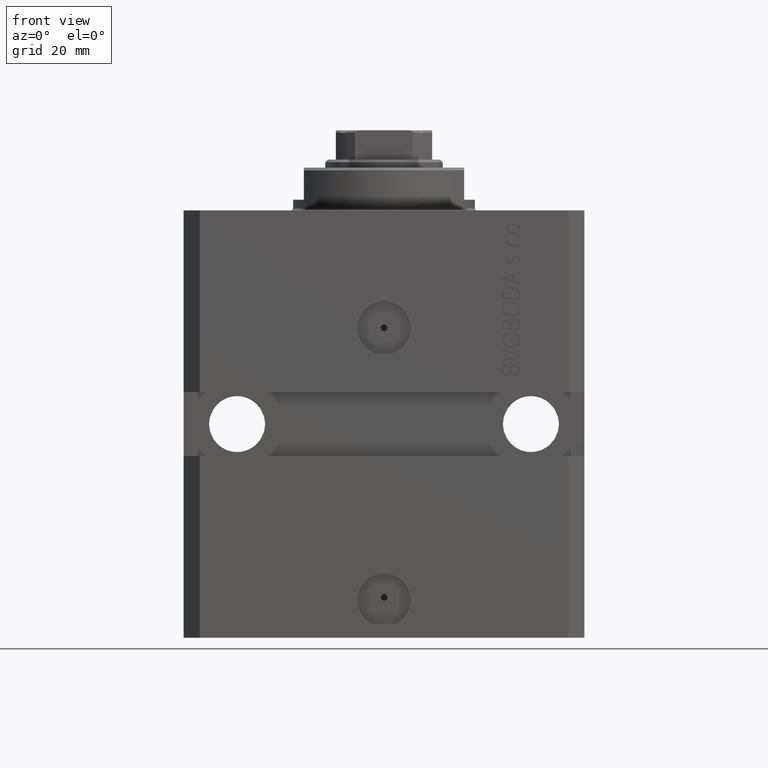
[diagram: clean part render]
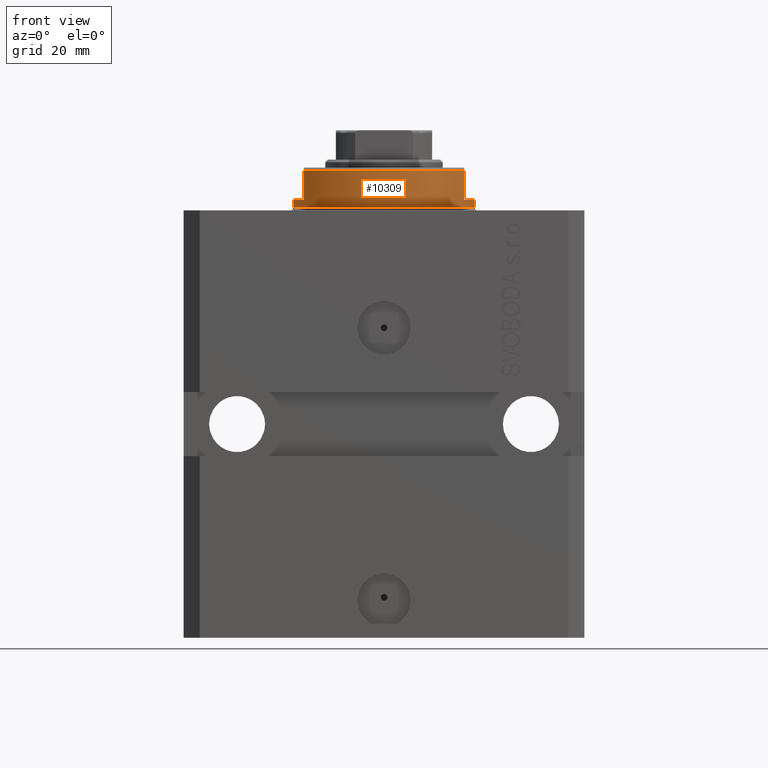
[diagram: same view with one face highlighted and labeled with its STEP entity id]
A machine part, front view. The second image highlights one B-rep face of the part: STEP entity #10309.
In plain terms, the highlighted cylindrical surface (partial cylindrical patch) has radius 17 mm, axis along (0, 0, -1).
Its self-contained STEP definition (entity closure, byte-faithful):
#488 = VECTOR ( 'NONE', #26181, 1000.000000000000000 ) ;
#1149 = ORIENTED_EDGE ( 'NONE', *, *, #16207, .F. ) ;
#1267 = CARTESIAN_POINT ( 'NONE',  ( 15.00000000000000000, -8.000000000000001776, -8.000000000000000000 ) ) ;
#1833 = DIRECTION ( 'NONE',  ( 0.000000000000000000, 0.000000000000000000, 1.000000000000000000 ) ) ;
#2695 = AXIS2_PLACEMENT_3D ( 'NONE', #45680, #45922, #9665 ) ;
#3148 = VECTOR ( 'NONE', #3478, 1000.000000000000000 ) ;
#3478 = DIRECTION ( 'NONE',  ( -0.000000000000000000, -0.000000000000000000, 1.000000000000000000 ) ) ;
#4168 = CARTESIAN_POINT ( 'NONE',  ( 17.00000000000000000, 0.000000000000000000, -8.000000000000000000 ) ) ;
#4759 = EDGE_CURVE ( 'NONE', #11005, #38864, #11563, .T. ) ;
#6138 = CARTESIAN_POINT ( 'NONE',  ( 17.00000000000000000, 0.000000000000000000, -2.000000000000000000 ) ) ;
#7481 = LINE ( 'NONE', #18844, #488 ) ;
#7886 = CARTESIAN_POINT ( 'NONE',  ( 15.00000000000000000, -8.000000000000001776, -7.500000000000007105 ) ) ;
#9665 = DIRECTION ( 'NONE',  ( 1.000000000000000000, 0.000000000000000000, 0.000000000000000000 ) ) ;
#10309 = ADVANCED_FACE ( 'NONE', ( #18914 ), #46150, .T. ) ;
#11005 = VERTEX_POINT ( 'NONE', #23058 ) ;
#11301 = VERTEX_POINT ( 'NONE', #37871 ) ;
#11458 = DIRECTION ( 'NONE',  ( 1.000000000000000000, 0.000000000000000000, 0.000000000000000000 ) ) ;
#11563 = CIRCLE ( 'NONE', #35014, 17.00000000000000000 ) ;
#12211 = ORIENTED_EDGE ( 'NONE', *, *, #4759, .F. ) ;
#13486 = VERTEX_POINT ( 'NONE', #6138 ) ;
#13882 = LINE ( 'NONE', #4168, #3148 ) ;
#14430 = ORIENTED_EDGE ( 'NONE', *, *, #26096, .T. ) ;
#15176 = VERTEX_POINT ( 'NONE', #21645 ) ;
#16163 = LINE ( 'NONE', #42479, #46857 ) ;
#16207 = EDGE_CURVE ( 'NONE', #38864, #11301, #7481, .T. ) ;
#16456 = EDGE_LOOP ( 'NONE', ( #1149, #12211, #14430, #30067, #36689, #23710, #32606, #27480 ) ) ;
#16698 = EDGE_CURVE ( 'NONE', #15176, #45279, #34646, .T. ) ;
#17994 = VERTEX_POINT ( 'NONE', #43121 ) ;
#18016 = DIRECTION ( 'NONE',  ( 0.000000000000000000, 0.000000000000000000, -1.000000000000000000 ) ) ;
#18844 = CARTESIAN_POINT ( 'NONE',  ( -17.00000000000000000, 2.081899558550500280E-15, -8.000000000000000000 ) ) ;
#18914 = FACE_OUTER_BOUND ( 'NONE', #16456, .T. ) ;
#19119 = DIRECTION ( 'NONE',  ( -1.000000000000000000, 0.000000000000000000, 0.000000000000000000 ) ) ;
#19931 = CARTESIAN_POINT ( 'NONE',  ( -17.00000000000000000, 2.081899558550500280E-15, -2.000000000000000000 ) ) ;
#20047 = CARTESIAN_POINT ( 'NONE',  ( -15.00000000000000000, -8.000000000000001776, -7.500000000000007105 ) ) ;
#21502 = AXIS2_PLACEMENT_3D ( 'NONE', #44723, #1833, #19119 ) ;
#21645 = CARTESIAN_POINT ( 'NONE',  ( 14.99999999999999645, -8.000000000000003553, -2.000000000000000000 ) ) ;
#23058 = CARTESIAN_POINT ( 'NONE',  ( -14.99999999999999645, -8.000000000000003553, -2.000000000000000000 ) ) ;
#23513 = AXIS2_PLACEMENT_3D ( 'NONE', #42318, #46100, #11458 ) ;
#23710 = ORIENTED_EDGE ( 'NONE', *, *, #34753, .F. ) ;
#24308 = DIRECTION ( 'NONE',  ( -1.000000000000000000, 0.000000000000000000, 0.000000000000000000 ) ) ;
#24783 = DIRECTION ( 'NONE',  ( 0.000000000000000000, 0.000000000000000000, -1.000000000000000000 ) ) ;
#25018 = CARTESIAN_POINT ( 'NONE',  ( 0.000000000000000000, 0.000000000000000000, -2.000000000000000000 ) ) ;
#26096 = EDGE_CURVE ( 'NONE', #11005, #38280, #16163, .T. ) ;
#26181 = DIRECTION ( 'NONE',  ( -0.000000000000000000, -0.000000000000000000, 1.000000000000000000 ) ) ;
#26920 = EDGE_CURVE ( 'NONE', #17994, #11301, #34854, .T. ) ;
#27480 = ORIENTED_EDGE ( 'NONE', *, *, #26920, .T. ) ;
#27773 = DIRECTION ( 'NONE',  ( 0.000000000000000000, 0.000000000000000000, -1.000000000000000000 ) ) ;
#29482 = EDGE_CURVE ( 'NONE', #13486, #17994, #13882, .T. ) ;
#29778 = CIRCLE ( 'NONE', #45699, 17.00000000000000000 ) ;
#29812 = CIRCLE ( 'NONE', #21502, 17.00000000000000000 ) ;
#30067 = ORIENTED_EDGE ( 'NONE', *, *, #36362, .T. ) ;
#32606 = ORIENTED_EDGE ( 'NONE', *, *, #29482, .T. ) ;
#34646 = LINE ( 'NONE', #1267, #43610 ) ;
#34753 = EDGE_CURVE ( 'NONE', #13486, #15176, #29778, .T. ) ;
#34854 = CIRCLE ( 'NONE', #23513, 17.00000000000000000 ) ;
#35014 = AXIS2_PLACEMENT_3D ( 'NONE', #25018, #24783, #24308 ) ;
#36362 = EDGE_CURVE ( 'NONE', #38280, #45279, #29812, .T. ) ;
#36689 = ORIENTED_EDGE ( 'NONE', *, *, #16698, .F. ) ;
#37122 = CARTESIAN_POINT ( 'NONE',  ( 0.000000000000000000, 0.000000000000000000, -2.000000000000000000 ) ) ;
#37871 = CARTESIAN_POINT ( 'NONE',  ( -17.00000000000000000, 2.081899558550500280E-15, -0.5000000000000004441 ) ) ;
#38280 = VERTEX_POINT ( 'NONE', #20047 ) ;
#38864 = VERTEX_POINT ( 'NONE', #19931 ) ;
#42318 = CARTESIAN_POINT ( 'NONE',  ( 0.000000000000000000, 0.000000000000000000, -0.5000000000000004441 ) ) ;
#42479 = CARTESIAN_POINT ( 'NONE',  ( -15.00000000000000000, -8.000000000000001776, -8.000000000000000000 ) ) ;
#43121 = CARTESIAN_POINT ( 'NONE',  ( 17.00000000000000000, 0.000000000000000000, -0.5000000000000004441 ) ) ;
#43610 = VECTOR ( 'NONE', #44626, 1000.000000000000000 ) ;
#44626 = DIRECTION ( 'NONE',  ( 0.000000000000000000, 0.000000000000000000, -1.000000000000000000 ) ) ;
#44723 = CARTESIAN_POINT ( 'NONE',  ( 0.000000000000000000, 0.000000000000000000, -7.500000000000007105 ) ) ;
#45279 = VERTEX_POINT ( 'NONE', #7886 ) ;
#45680 = CARTESIAN_POINT ( 'NONE',  ( 0.000000000000000000, 0.000000000000000000, -8.000000000000000000 ) ) ;
#45699 = AXIS2_PLACEMENT_3D ( 'NONE', #37122, #18016, #46698 ) ;
#45922 = DIRECTION ( 'NONE',  ( -0.000000000000000000, -0.000000000000000000, 1.000000000000000000 ) ) ;
#46100 = DIRECTION ( 'NONE',  ( -0.000000000000000000, -0.000000000000000000, -1.000000000000000000 ) ) ;
#46150 = CYLINDRICAL_SURFACE ( 'NONE', #2695, 17.00000000000000000 ) ;
#46698 = DIRECTION ( 'NONE',  ( -1.000000000000000000, 0.000000000000000000, 0.000000000000000000 ) ) ;
#46857 = VECTOR ( 'NONE', #27773, 1000.000000000000000 ) ;